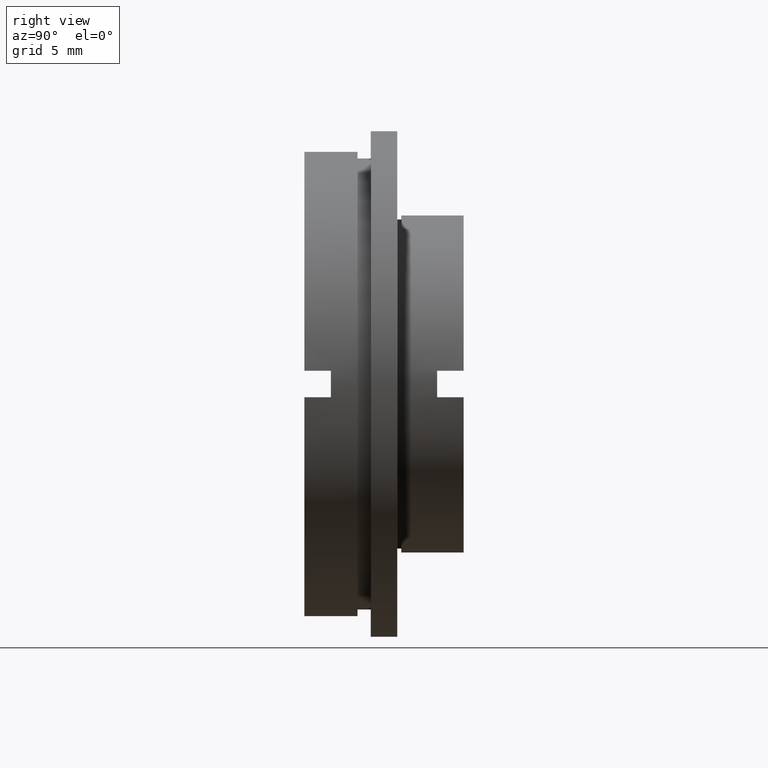
[diagram: clean part render]
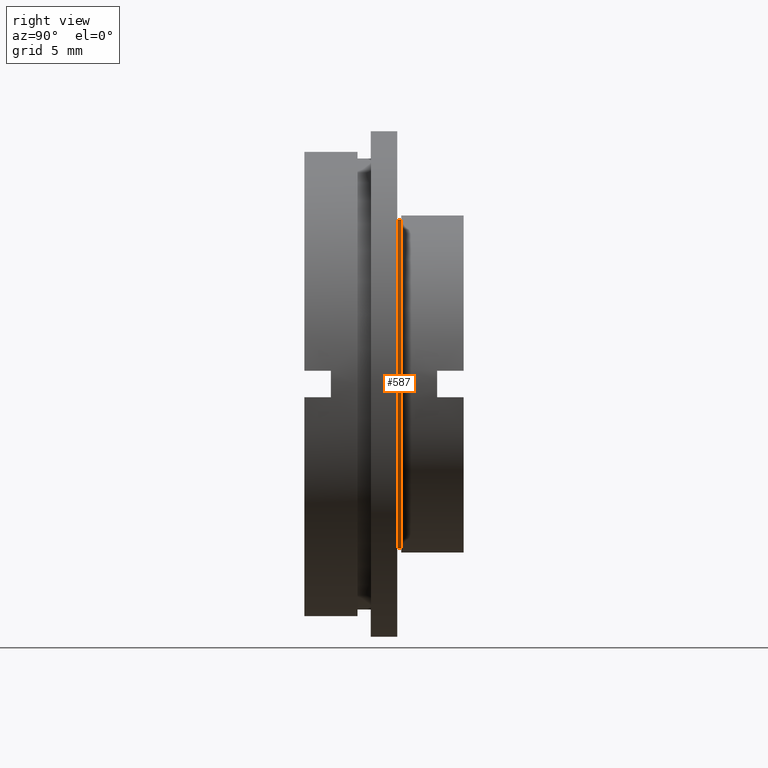
[diagram: same view with one face highlighted and labeled with its STEP entity id]
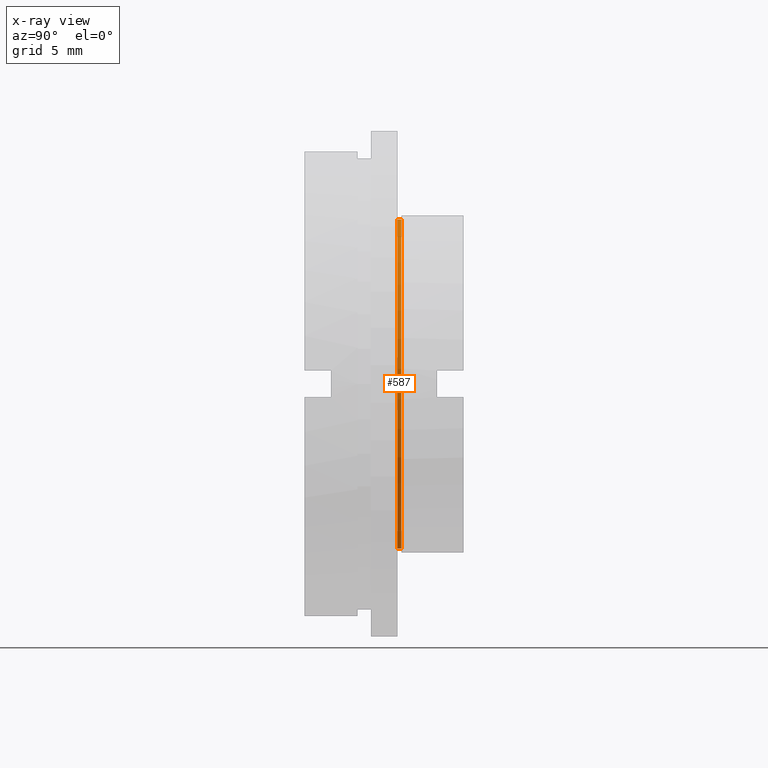
[diagram: x-ray of the same camera — body ghosted, the highlighted face saturated]
A machine part, right view. The second image highlights one B-rep face of the part: STEP entity #587.
The next image is the same camera in x-ray: the body ghosted, the highlighted face saturated — about 0% of this face is hidden behind the body in this view.
In plain terms, the highlighted cylindrical surface (partial cylindrical patch) has radius 12.4 mm, axis along (-0, 1, -0).
Its self-contained STEP definition (entity closure, byte-faithful):
#1 = DIRECTION ( 'NONE',  ( -0.0000000000000000000, 1.000000000000000000, -0.0000000000000000000 ) ) ;
#15 = DIRECTION ( 'NONE',  ( 0.0000000000000000000, 0.0000000000000000000, 1.000000000000000000 ) ) ;
#21 = EDGE_CURVE ( 'NONE', #461, #1022, #106, .T. ) ;
#77 = CARTESIAN_POINT ( 'NONE',  ( 0.0000000000000000000, 7.300000000000000700, 12.39999999999999900 ) ) ;
#85 = VECTOR ( 'NONE', #851, 1000.000000000000000 ) ;
#106 = CIRCLE ( 'NONE', #616, 12.39999999999999900 ) ;
#142 = CARTESIAN_POINT ( 'NONE',  ( 0.0000000000000000000, 6.999999999999999100, 0.0000000000000000000 ) ) ;
#162 = DIRECTION ( 'NONE',  ( 0.0000000000000000000, 0.0000000000000000000, 1.000000000000000000 ) ) ;
#206 = ORIENTED_EDGE ( 'NONE', *, *, #470, .F. ) ;
#222 = CARTESIAN_POINT ( 'NONE',  ( 1.518562030942717800E-015, 6.999999999999999100, -12.39999999999999900 ) ) ;
#224 = CARTESIAN_POINT ( 'NONE',  ( 0.0000000000000000000, 22.67749945107591400, 0.0000000000000000000 ) ) ;
#256 = VECTOR ( 'NONE', #428, 1000.000000000000000 ) ;
#262 = CYLINDRICAL_SURFACE ( 'NONE', #549, 12.39999999999999900 ) ;
#274 = LINE ( 'NONE', #814, #85 ) ;
#321 = DIRECTION ( 'NONE',  ( -0.0000000000000000000, 1.000000000000000000, -0.0000000000000000000 ) ) ;
#428 = DIRECTION ( 'NONE',  ( -0.0000000000000000000, 1.000000000000000000, -0.0000000000000000000 ) ) ;
#461 = VERTEX_POINT ( 'NONE', #77 ) ;
#470 = EDGE_CURVE ( 'NONE', #609, #461, #274, .T. ) ;
#483 = LINE ( 'NONE', #1242, #256 ) ;
#489 = EDGE_CURVE ( 'NONE', #609, #1223, #1008, .T. ) ;
#549 = AXIS2_PLACEMENT_3D ( 'NONE', #224, #321, #162 ) ;
#587 = ADVANCED_FACE ( 'NONE', ( #688 ), #262, .T. ) ;
#609 = VERTEX_POINT ( 'NONE', #1007 ) ;
#616 = AXIS2_PLACEMENT_3D ( 'NONE', #1313, #1240, #664 ) ;
#641 = ORIENTED_EDGE ( 'NONE', *, *, #21, .F. ) ;
#664 = DIRECTION ( 'NONE',  ( 0.0000000000000000000, 0.0000000000000000000, 1.000000000000000000 ) ) ;
#688 = FACE_OUTER_BOUND ( 'NONE', #1332, .T. ) ;
#739 = CARTESIAN_POINT ( 'NONE',  ( 1.518562030942717800E-015, 7.300000000000000700, -12.39999999999999900 ) ) ;
#814 = CARTESIAN_POINT ( 'NONE',  ( 0.0000000000000000000, 22.67749945107591400, 12.39999999999999900 ) ) ;
#824 = ORIENTED_EDGE ( 'NONE', *, *, #489, .T. ) ;
#851 = DIRECTION ( 'NONE',  ( -0.0000000000000000000, 1.000000000000000000, -0.0000000000000000000 ) ) ;
#1007 = CARTESIAN_POINT ( 'NONE',  ( 0.0000000000000000000, 6.999999999999999100, 12.39999999999999900 ) ) ;
#1008 = CIRCLE ( 'NONE', #1245, 12.39999999999999900 ) ;
#1022 = VERTEX_POINT ( 'NONE', #739 ) ;
#1137 = EDGE_CURVE ( 'NONE', #1223, #1022, #483, .T. ) ;
#1223 = VERTEX_POINT ( 'NONE', #222 ) ;
#1240 = DIRECTION ( 'NONE',  ( -0.0000000000000000000, 1.000000000000000000, -0.0000000000000000000 ) ) ;
#1242 = CARTESIAN_POINT ( 'NONE',  ( 1.518562030942717800E-015, 22.67749945107591400, -12.39999999999999900 ) ) ;
#1245 = AXIS2_PLACEMENT_3D ( 'NONE', #142, #1, #15 ) ;
#1288 = ORIENTED_EDGE ( 'NONE', *, *, #1137, .T. ) ;
#1313 = CARTESIAN_POINT ( 'NONE',  ( 0.0000000000000000000, 7.300000000000000700, 0.0000000000000000000 ) ) ;
#1332 = EDGE_LOOP ( 'NONE', ( #824, #1288, #641, #206 ) ) ;